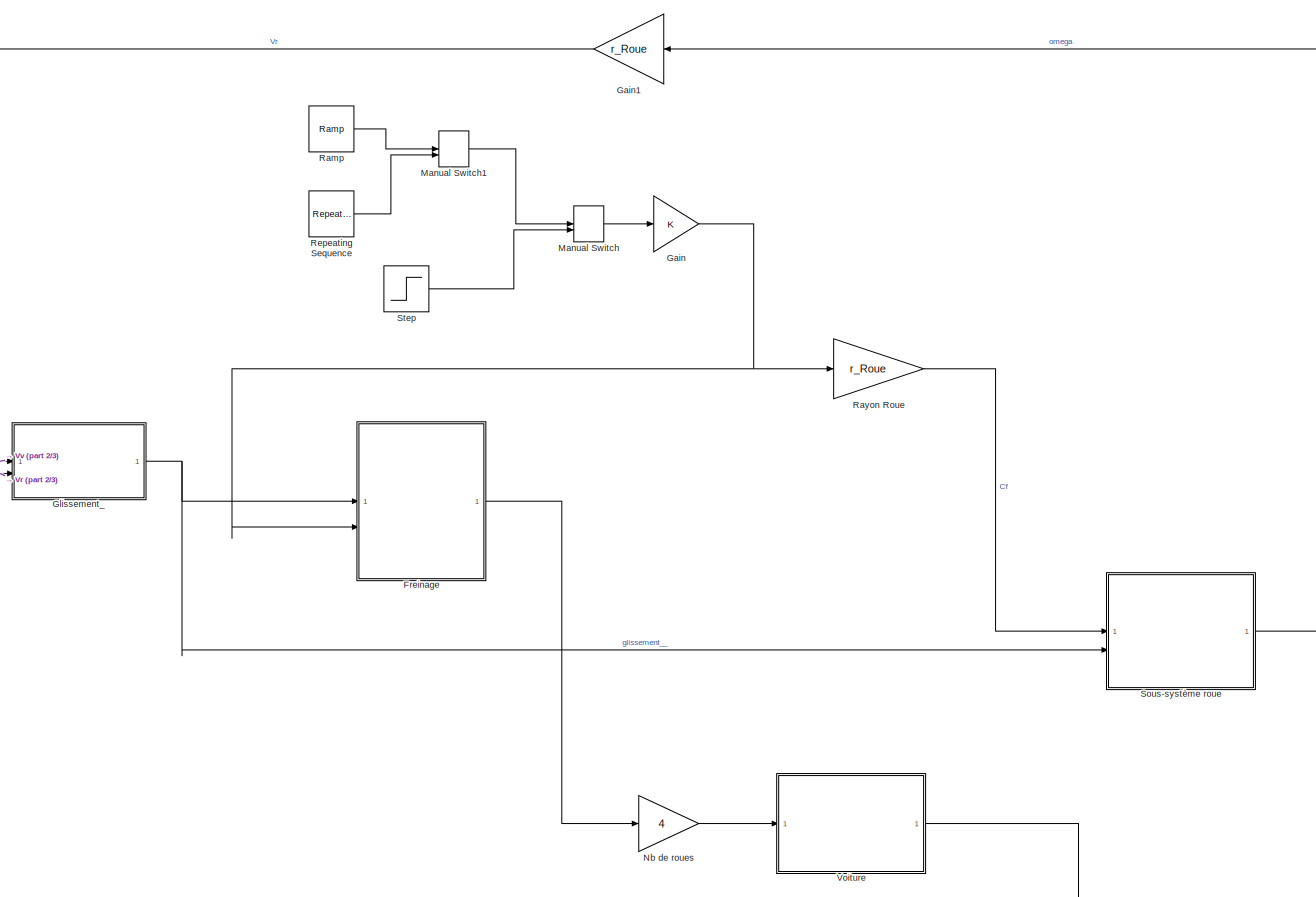
[diagram: root canvas - part 1/3, most of the canvas]
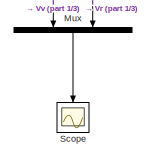
[diagram: root canvas - part 2/3, middle left region]
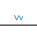
[diagram: root canvas - part 3/3, bottom center region]
MODEL slx_2fd92b02d509
KIND model
CONFIG AbsTol = auto
CONFIG EnableMultiTasking = off
CONFIG FixedStep = auto
CONFIG MaxStep = auto
CONFIG MinStep = auto
CONFIG RelTol = 1e-3
CONFIG SampleTimeConstraint = Unconstrained
CONFIG SolverName = VariableStepAuto
CONFIG StartTime = 0.0
CONFIG StopTime = 10.0
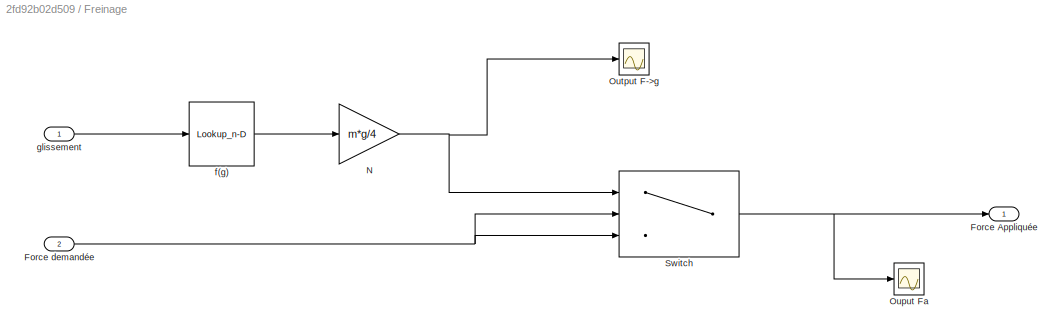
BLOCK [SubSystem] Freinage
BLOCK [Outport] Freinage/Force Appliquée
  VectorParamsAs1DForOutWhenUnconnected = off
BLOCK [Inport] Freinage/Force demandée
  Port = 2
BLOCK [Gain] Freinage/N
  Gain = m*g/4
BLOCK [Scope] Freinage/Ouput Fa
  Floating = off
  NumInputPorts = 1
  ScopeSpecificationString = Simulink.scopes.TimeScopeBlockCfg('CurrentConfiguration', extmgr.ConfigurationSet(extmgr.Configuration('Core','General UI',true),extmgr.Configuration('Core','Source UI',true),extmgr.Configuration('Sources','WiredSimulink',true,'DataLoggingVariableName','ScopeData1'),extmgr.Configuration('Visuals','Time Domain',true,'SerializedDisplays',{struct('MinYLimReal','-1.00000','MaxYLimReal','1.00000','YLab...<+1365ch>
BLOCK [Scope] Freinage/Output F->g
  Floating = off
  NumInputPorts = 1
  ScopeSpecificationString = Simulink.scopes.TimeScopeBlockCfg('CurrentConfiguration', extmgr.ConfigurationSet(extmgr.Configuration('Core','General UI',true),extmgr.Configuration('Core','Source UI',true),extmgr.Configuration('Sources','WiredSimulink',true),extmgr.Configuration('Visuals','Time Domain',true,'SerializedDisplays',{struct('MinYLimReal','-1.00000','MaxYLimReal','1.00000','YLabelReal','','MinYLimMag','0.00000','MaxY...<+1350ch>
BLOCK [Switch] Freinage/Switch
  Criteria = u2 > Threshold
  InputSameDT = off
  SaturateOnIntegerOverflow = off
  Threshold = 1962
BLOCK [Lookup_n-D] Freinage/f(g)
  BreakpointsForDimension1 = [0,0.1,0.2,0.3,0.4,0.5,0.6,0.7,0.8,0.9,1.0]
  InputPortMap = u0
  InternalRulePriority = Speed
  NumberOfTableDimensions = 1
  RndMeth = Simplest
  Table = [0,0.85,0.95,0.78,0.73,0.7,0.68,0.66,0.64,0.62,0.61]
BLOCK [Inport] Freinage/glissement
BLOCK [Gain] Gain
BLOCK [Gain] Gain1
  Gain = r_Roue
  NameLocation = top
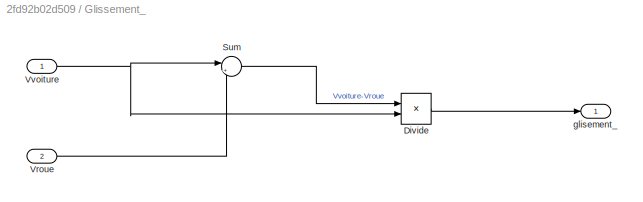
BLOCK [SubSystem] Glissement_
BLOCK [Product] Glissement_/Divide
  Inputs = */
BLOCK [Sum] Glissement_/Sum
  Inputs = |+-
BLOCK [Inport] Glissement_/Vroue
  Port = 2
BLOCK [Inport] Glissement_/Vvoiture
BLOCK [Outport] Glissement_/glisement_
BLOCK [ManualSwitch] Manual Switch
BLOCK [ManualSwitch] Manual Switch1
BLOCK [Mux] Mux
  DisplayOption = bar
  Inputs = 2
  NameLocation = left
BLOCK [Gain] Nb de roues
  Gain = 4
BLOCK [Reference] Ramp  REF=simulink/Sources/Ramp
  SourceBlock = simulink/Sources/Ramp
  SourceType = Ramp
BLOCK [Gain] Rayon Roue
  Gain = r_Roue
BLOCK [Reference] Repeating Sequence  REF=simulink/Sources/Repeating
Sequence
  SourceBlock = simulink/Sources/Repeating\nSequence
  SourceType = Repeating table
BLOCK [Scope] Scope
  Floating = off
  NameLocation = left
  NumInputPorts = 1
  ScopeSpecificationString = Simulink.scopes.TimeScopeBlockCfg('CurrentConfiguration', extmgr.ConfigurationSet(extmgr.Configuration('Core','General UI',true),extmgr.Configuration('Core','Source UI',true),extmgr.Configuration('Sources','WiredSimulink',true,'DataLoggingVariableName','ScopeData1'),extmgr.Configuration('Visuals','Time Domain',true),extmgr.Configuration('Tools','Plot Navigation',true),extmgr.Configuration('Tools',...<+40ch>
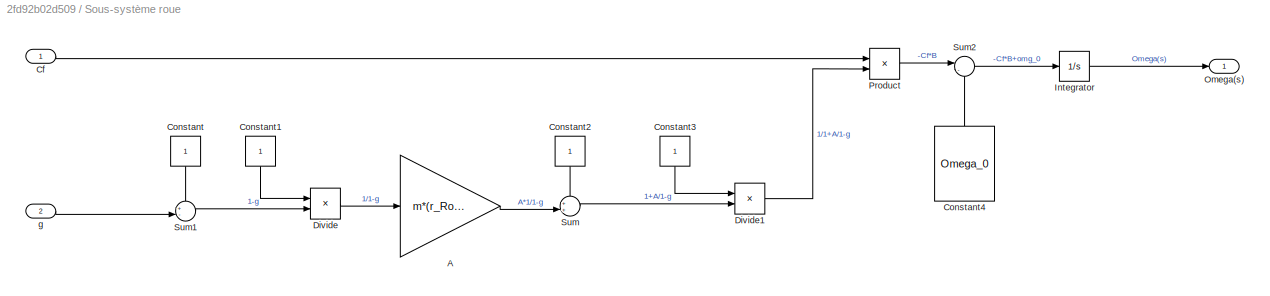
BLOCK [SubSystem] Sous-système roue
BLOCK [Gain] Sous-système roue/A
  Gain = m*(r_Roue)^2/4
BLOCK [Inport] Sous-système roue/Cf
BLOCK [Constant] Sous-système roue/Constant
  NameLocation = left
BLOCK [Constant] Sous-système roue/Constant1
  NameLocation = left
BLOCK [Constant] Sous-système roue/Constant2
  NameLocation = left
BLOCK [Constant] Sous-système roue/Constant3
  NameLocation = left
BLOCK [Constant] Sous-système roue/Constant4
  NameLocation = right
  Value = Omega_0
BLOCK [Product] Sous-système roue/Divide
  Inputs = */
BLOCK [Product] Sous-système roue/Divide1
  Inputs = */
BLOCK [Integrator] Sous-système roue/Integrator
BLOCK [Outport] Sous-système roue/Omega(s)
BLOCK [Product] Sous-système roue/Product
BLOCK [Sum] Sous-système roue/Sum
  Inputs = ++|
BLOCK [Sum] Sous-système roue/Sum1
  Inputs = +-|
BLOCK [Sum] Sous-système roue/Sum2
  Inputs = |-+
BLOCK [Inport] Sous-système roue/g
  Port = 2
BLOCK [Step] Step
  SampleTime = 0
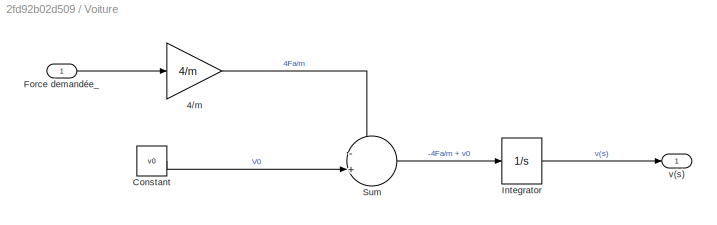
BLOCK [SubSystem] Voiture
BLOCK [Gain] Voiture/4//m
  Gain = 4/m
BLOCK [Constant] Voiture/Constant
  Value = v0
BLOCK [Inport] Voiture/Force demandée_
BLOCK [Integrator] Voiture/Integrator
BLOCK [Sum] Voiture/Sum
  Inputs = -+|
BLOCK [Outport] Voiture/v(s)
NET Freinage/Force demandée:1 -> Freinage/Switch:2, Freinage/Switch:3
NET Freinage/N:1 -> Freinage/Output F->g:1, Freinage/Switch:1
NET Freinage/Switch:1 -> Freinage/Force Appliquée:1, Freinage/Ouput Fa:1
LINE Freinage/f(g):1 -> Freinage/N:1
LINE Freinage/glissement:1 -> Freinage/f(g):1
LINE Freinage:1 -> Nb de roues:1
NET Gain1:1 -> Glissement_:2, Mux:2
NET Gain:1 -> Freinage:2, Rayon Roue:1
LINE Glissement_/Divide:1 -> Glissement_/glisement_:1
LINE Glissement_/Sum:1 -> Glissement_/Divide:1
LINE Glissement_/Vroue:1 -> Glissement_/Sum:2
NET Glissement_/Vvoiture:1 -> Glissement_/Divide:2, Glissement_/Sum:1
NET Glissement_:1 -> Freinage:1, Sous-système roue:2
LINE Manual Switch1:1 -> Manual Switch:1
LINE Manual Switch:1 -> Gain:1
LINE Mux:1 -> Scope:1
LINE Nb de roues:1 -> Voiture:1
LINE Ramp:1 -> Manual Switch1:1
LINE Rayon Roue:1 -> Sous-système roue:1
LINE Repeating Sequence:1 -> Manual Switch1:2
LINE Sous-système roue/A:1 -> Sous-système roue/Sum:2
LINE Sous-système roue/Cf:1 -> Sous-système roue/Product:1
LINE Sous-système roue/Constant1:1 -> Sous-système roue/Divide:1
LINE Sous-système roue/Constant2:1 -> Sous-système roue/Sum:1
LINE Sous-système roue/Constant3:1 -> Sous-système roue/Divide1:1
LINE Sous-système roue/Constant4:1 -> Sous-système roue/Sum2:2
LINE Sous-système roue/Constant:1 -> Sous-système roue/Sum1:1
LINE Sous-système roue/Divide1:1 -> Sous-système roue/Product:2
LINE Sous-système roue/Divide:1 -> Sous-système roue/A:1
LINE Sous-système roue/Integrator:1 -> Sous-système roue/Omega(s):1
LINE Sous-système roue/Product:1 -> Sous-système roue/Sum2:1
LINE Sous-système roue/Sum1:1 -> Sous-système roue/Divide:2
LINE Sous-système roue/Sum2:1 -> Sous-système roue/Integrator:1
LINE Sous-système roue/Sum:1 -> Sous-système roue/Divide1:2
LINE Sous-système roue/g:1 -> Sous-système roue/Sum1:2
LINE Sous-système roue:1 -> Gain1:1
LINE Step:1 -> Manual Switch:2
LINE Voiture/4//m:1 -> Voiture/Sum:1
LINE Voiture/Constant:1 -> Voiture/Sum:2
LINE Voiture/Force demandée_:1 -> Voiture/4//m:1
LINE Voiture/Integrator:1 -> Voiture/v(s):1
LINE Voiture/Sum:1 -> Voiture/Integrator:1
NET Voiture:1 -> Glissement_:1, Mux:1
note: NET lines group one-source signal fan-out (src -> all destinations, sorted); 1:1 wires keep LINE
